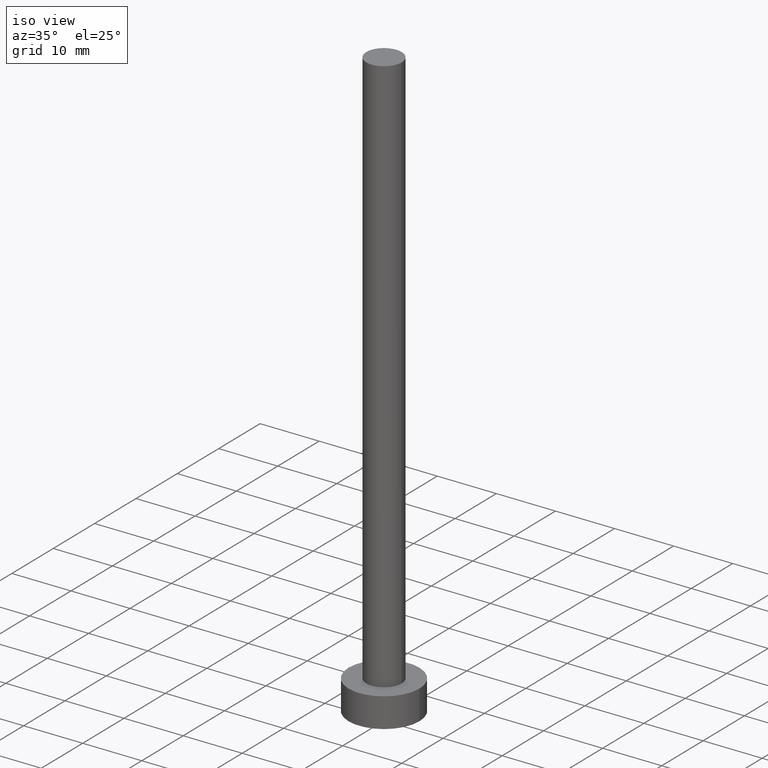
[diagram: clean part render]
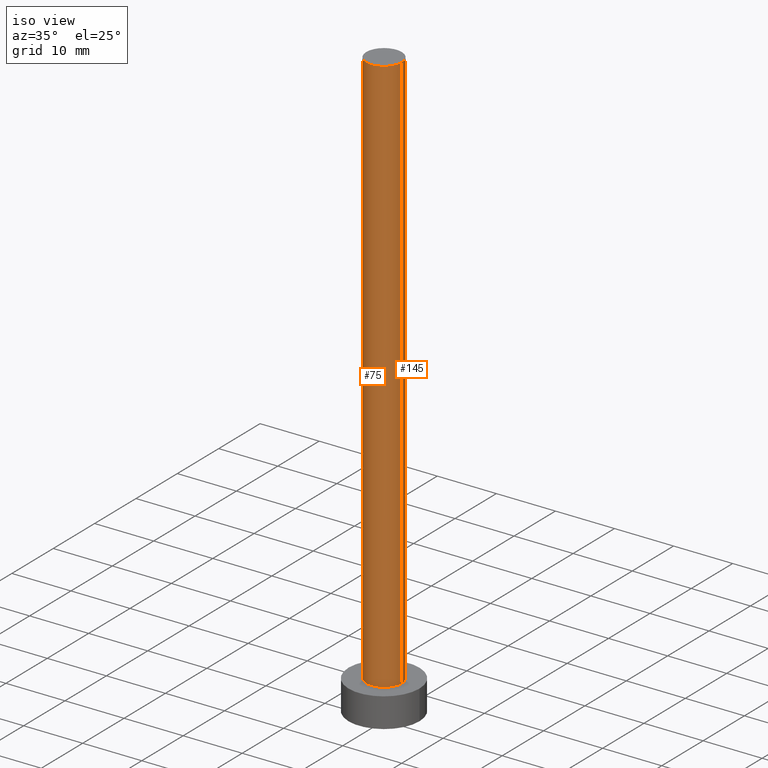
[diagram: same view with one multi-face feature highlighted, each face labeled with its STEP entity id]
A machine part, iso view. The highlighted faces form ONE feature: a constant-radius fillet chain: 2 tangent blend faces with common blend radius 3 mm. The faces share edges in the B-rep.
Their STEP definitions:
[1] entity #145 (Cylinder):
#14 = CARTESIAN_POINT ( 'NONE',  ( 0.000000000000000000, 0.000000000000000000, 100.0000000000000000 ) ) ;
#18 = CARTESIAN_POINT ( 'NONE',  ( 3.000000000000000444, 3.673940397442060361E-16, 100.0000000000000000 ) ) ;
#20 = VERTEX_POINT ( 'NONE', #151 ) ;
#21 = CARTESIAN_POINT ( 'NONE',  ( -3.000000000000000444, 0.000000000000000000, 100.0000000000000000 ) ) ;
#23 = AXIS2_PLACEMENT_3D ( 'NONE', #214, #90, #235 ) ;
#25 = CIRCLE ( 'NONE', #146, 3.000000000000000444 ) ;
#34 = DIRECTION ( 'NONE',  ( -1.000000000000000000, 0.000000000000000000, 0.000000000000000000 ) ) ;
#37 = VERTEX_POINT ( 'NONE', #18 ) ;
#42 = EDGE_CURVE ( 'NONE', #122, #113, #100, .T. ) ;
#58 = LINE ( 'NONE', #246, #169 ) ;
#59 = EDGE_CURVE ( 'NONE', #20, #113, #242, .T. ) ;
#61 = ORIENTED_EDGE ( 'NONE', *, *, #124, .F. ) ;
#84 = EDGE_LOOP ( 'NONE', ( #61, #140, #103, #190 ) ) ;
#90 = DIRECTION ( 'NONE',  ( 0.000000000000000000, 0.000000000000000000, 1.000000000000000000 ) ) ;
#96 = VECTOR ( 'NONE', #102, 1000.000000000000000 ) ;
#100 = LINE ( 'NONE', #171, #96 ) ;
#102 = DIRECTION ( 'NONE',  ( -0.000000000000000000, -0.000000000000000000, -1.000000000000000000 ) ) ;
#103 = ORIENTED_EDGE ( 'NONE', *, *, #59, .T. ) ;
#112 = DIRECTION ( 'NONE',  ( 0.000000000000000000, 0.000000000000000000, 1.000000000000000000 ) ) ;
#113 = VERTEX_POINT ( 'NONE', #147 ) ;
#122 = VERTEX_POINT ( 'NONE', #21 ) ;
#124 = EDGE_CURVE ( 'NONE', #37, #122, #25, .T. ) ;
#134 = CARTESIAN_POINT ( 'NONE',  ( 0.000000000000000000, 0.000000000000000000, 100.0000000000000000 ) ) ;
#140 = ORIENTED_EDGE ( 'NONE', *, *, #197, .T. ) ;
#145 = ADVANCED_FACE ( 'NONE', ( #207 ), #150, .T. ) ;
#146 = AXIS2_PLACEMENT_3D ( 'NONE', #14, #112, #187 ) ;
#147 = CARTESIAN_POINT ( 'NONE',  ( -3.000000000000000444, 0.000000000000000000, 5.000000000000000000 ) ) ;
#150 = CYLINDRICAL_SURFACE ( 'NONE', #205, 3.000000000000000444 ) ;
#151 = CARTESIAN_POINT ( 'NONE',  ( 3.000000000000000444, 3.673940397442060361E-16, 5.000000000000000000 ) ) ;
#169 = VECTOR ( 'NONE', #251, 1000.000000000000000 ) ;
#171 = CARTESIAN_POINT ( 'NONE',  ( -3.000000000000000444, 0.000000000000000000, 100.0000000000000000 ) ) ;
#184 = DIRECTION ( 'NONE',  ( -0.000000000000000000, -0.000000000000000000, -1.000000000000000000 ) ) ;
#187 = DIRECTION ( 'NONE',  ( 1.000000000000000000, 0.000000000000000000, 0.000000000000000000 ) ) ;
#190 = ORIENTED_EDGE ( 'NONE', *, *, #42, .F. ) ;
#197 = EDGE_CURVE ( 'NONE', #37, #20, #58, .T. ) ;
#205 = AXIS2_PLACEMENT_3D ( 'NONE', #134, #184, #34 ) ;
#207 = FACE_OUTER_BOUND ( 'NONE', #84, .T. ) ;
#214 = CARTESIAN_POINT ( 'NONE',  ( 0.000000000000000000, 0.000000000000000000, 5.000000000000000000 ) ) ;
#235 = DIRECTION ( 'NONE',  ( 1.000000000000000000, 0.000000000000000000, 0.000000000000000000 ) ) ;
#242 = CIRCLE ( 'NONE', #23, 3.000000000000000444 ) ;
#246 = CARTESIAN_POINT ( 'NONE',  ( 3.000000000000000444, 3.673940397442060361E-16, 100.0000000000000000 ) ) ;
#251 = DIRECTION ( 'NONE',  ( -0.000000000000000000, -0.000000000000000000, -1.000000000000000000 ) ) ;
[2] entity #75 (Cylinder):
#18 = CARTESIAN_POINT ( 'NONE',  ( 3.000000000000000444, 3.673940397442060361E-16, 100.0000000000000000 ) ) ;
#20 = VERTEX_POINT ( 'NONE', #151 ) ;
#21 = CARTESIAN_POINT ( 'NONE',  ( -3.000000000000000444, 0.000000000000000000, 100.0000000000000000 ) ) ;
#37 = VERTEX_POINT ( 'NONE', #18 ) ;
#42 = EDGE_CURVE ( 'NONE', #122, #113, #100, .T. ) ;
#43 = CIRCLE ( 'NONE', #179, 3.000000000000000444 ) ;
#46 = DIRECTION ( 'NONE',  ( -1.000000000000000000, 0.000000000000000000, 0.000000000000000000 ) ) ;
#52 = DIRECTION ( 'NONE',  ( 1.000000000000000000, 0.000000000000000000, 0.000000000000000000 ) ) ;
#58 = LINE ( 'NONE', #246, #169 ) ;
#65 = FACE_OUTER_BOUND ( 'NONE', #136, .T. ) ;
#69 = DIRECTION ( 'NONE',  ( 0.000000000000000000, 0.000000000000000000, 1.000000000000000000 ) ) ;
#75 = ADVANCED_FACE ( 'NONE', ( #65 ), #127, .T. ) ;
#76 = ORIENTED_EDGE ( 'NONE', *, *, #197, .F. ) ;
#79 = DIRECTION ( 'NONE',  ( 0.000000000000000000, 0.000000000000000000, 1.000000000000000000 ) ) ;
#93 = CARTESIAN_POINT ( 'NONE',  ( 0.000000000000000000, 0.000000000000000000, 100.0000000000000000 ) ) ;
#96 = VECTOR ( 'NONE', #102, 1000.000000000000000 ) ;
#100 = LINE ( 'NONE', #171, #96 ) ;
#102 = DIRECTION ( 'NONE',  ( -0.000000000000000000, -0.000000000000000000, -1.000000000000000000 ) ) ;
#104 = EDGE_CURVE ( 'NONE', #122, #37, #43, .T. ) ;
#106 = DIRECTION ( 'NONE',  ( -0.000000000000000000, -0.000000000000000000, -1.000000000000000000 ) ) ;
#113 = VERTEX_POINT ( 'NONE', #147 ) ;
#122 = VERTEX_POINT ( 'NONE', #21 ) ;
#127 = CYLINDRICAL_SURFACE ( 'NONE', #202, 3.000000000000000444 ) ;
#129 = CIRCLE ( 'NONE', #165, 3.000000000000000444 ) ;
#136 = EDGE_LOOP ( 'NONE', ( #76, #230, #139, #170 ) ) ;
#139 = ORIENTED_EDGE ( 'NONE', *, *, #42, .T. ) ;
#144 = DIRECTION ( 'NONE',  ( 1.000000000000000000, 0.000000000000000000, 0.000000000000000000 ) ) ;
#147 = CARTESIAN_POINT ( 'NONE',  ( -3.000000000000000444, 0.000000000000000000, 5.000000000000000000 ) ) ;
#151 = CARTESIAN_POINT ( 'NONE',  ( 3.000000000000000444, 3.673940397442060361E-16, 5.000000000000000000 ) ) ;
#165 = AXIS2_PLACEMENT_3D ( 'NONE', #192, #79, #52 ) ;
#169 = VECTOR ( 'NONE', #251, 1000.000000000000000 ) ;
#170 = ORIENTED_EDGE ( 'NONE', *, *, #233, .T. ) ;
#171 = CARTESIAN_POINT ( 'NONE',  ( -3.000000000000000444, 0.000000000000000000, 100.0000000000000000 ) ) ;
#179 = AXIS2_PLACEMENT_3D ( 'NONE', #238, #69, #144 ) ;
#192 = CARTESIAN_POINT ( 'NONE',  ( 0.000000000000000000, 0.000000000000000000, 5.000000000000000000 ) ) ;
#197 = EDGE_CURVE ( 'NONE', #37, #20, #58, .T. ) ;
#202 = AXIS2_PLACEMENT_3D ( 'NONE', #93, #106, #46 ) ;
#230 = ORIENTED_EDGE ( 'NONE', *, *, #104, .F. ) ;
#233 = EDGE_CURVE ( 'NONE', #113, #20, #129, .T. ) ;
#238 = CARTESIAN_POINT ( 'NONE',  ( 0.000000000000000000, 0.000000000000000000, 100.0000000000000000 ) ) ;
#246 = CARTESIAN_POINT ( 'NONE',  ( 3.000000000000000444, 3.673940397442060361E-16, 100.0000000000000000 ) ) ;
#251 = DIRECTION ( 'NONE',  ( -0.000000000000000000, -0.000000000000000000, -1.000000000000000000 ) ) ;